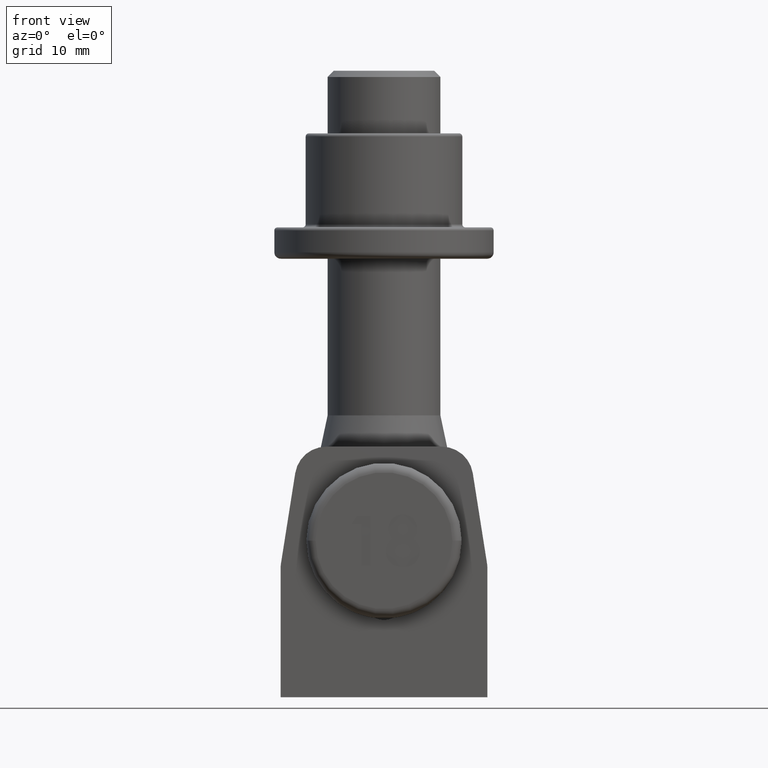
[diagram: clean part render]
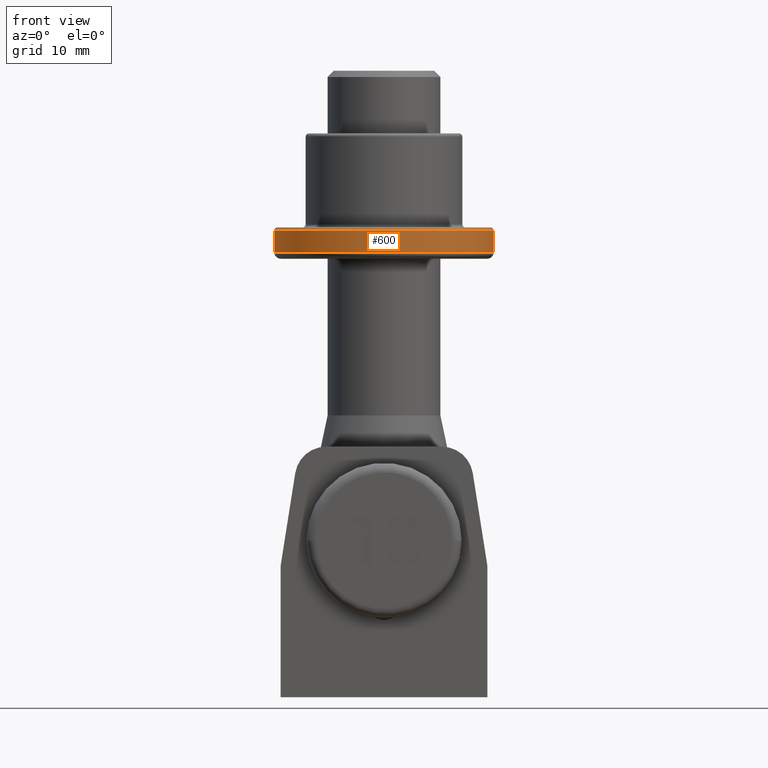
[diagram: same view with one face highlighted and labeled with its STEP entity id]
A machine part, front view. The second image highlights one B-rep face of the part: STEP entity #600.
In plain terms, the highlighted cylindrical surface (partial cylindrical patch) has radius 17.5 mm, axis along (-0, -0, -1).
Its self-contained STEP definition (entity closure, byte-faithful):
#232 = CARTESIAN_POINT ( 'NONE',  ( 0.0000000000000000000, 0.0000000000000000000, 1.000000000000000900 ) ) ;
#600 = ADVANCED_FACE ( 'NONE', ( #7472 ), #6503, .T. ) ;
#680 = EDGE_LOOP ( 'NONE', ( #13530, #1802, #7860, #10313 ) ) ;
#1126 = LINE ( 'NONE', #5951, #9847 ) ;
#1248 = DIRECTION ( 'NONE',  ( -0.0000000000000000000, -0.0000000000000000000, -1.000000000000000000 ) ) ;
#1388 = DIRECTION ( 'NONE',  ( -0.0000000000000000000, -0.0000000000000000000, -1.000000000000000000 ) ) ;
#1557 = CARTESIAN_POINT ( 'NONE',  ( 0.0000000000000000000, 0.0000000000000000000, 4.500000000000003600 ) ) ;
#1802 = ORIENTED_EDGE ( 'NONE', *, *, #5618, .T. ) ;
#1829 = DIRECTION ( 'NONE',  ( 1.000000000000000000, 0.0000000000000000000, 0.0000000000000000000 ) ) ;
#2329 = CARTESIAN_POINT ( 'NONE',  ( -17.50000000000000400, 0.0000000000000000000, 4.500000000000003600 ) ) ;
#2380 = EDGE_CURVE ( 'NONE', #6177, #10630, #12768, .T. ) ;
#2868 = DIRECTION ( 'NONE',  ( -0.0000000000000000000, -0.0000000000000000000, -1.000000000000000000 ) ) ;
#4364 = CIRCLE ( 'NONE', #11551, 17.50000000000000400 ) ;
#4393 = EDGE_CURVE ( 'NONE', #7471, #15809, #1126, .T. ) ;
#4629 = AXIS2_PLACEMENT_3D ( 'NONE', #1557, #2868, #14031 ) ;
#5088 = AXIS2_PLACEMENT_3D ( 'NONE', #6085, #7720, #11454 ) ;
#5618 = EDGE_CURVE ( 'NONE', #6177, #7471, #13286, .T. ) ;
#5951 = CARTESIAN_POINT ( 'NONE',  ( -17.50000000000000400, 0.0000000000000000000, 5.000000000000004400 ) ) ;
#6085 = CARTESIAN_POINT ( 'NONE',  ( 0.0000000000000000000, 0.0000000000000000000, 5.000000000000004400 ) ) ;
#6177 = VERTEX_POINT ( 'NONE', #9436 ) ;
#6503 = CYLINDRICAL_SURFACE ( 'NONE', #5088, 17.50000000000000400 ) ;
#7471 = VERTEX_POINT ( 'NONE', #2329 ) ;
#7472 = FACE_OUTER_BOUND ( 'NONE', #680, .T. ) ;
#7561 = CARTESIAN_POINT ( 'NONE',  ( 17.50000000000000400, 2.143131898507868600E-015, 1.000000000000000900 ) ) ;
#7720 = DIRECTION ( 'NONE',  ( -0.0000000000000000000, -0.0000000000000000000, -1.000000000000000000 ) ) ;
#7860 = ORIENTED_EDGE ( 'NONE', *, *, #4393, .T. ) ;
#8846 = CARTESIAN_POINT ( 'NONE',  ( -17.50000000000000400, 0.0000000000000000000, 1.000000000000000900 ) ) ;
#9436 = CARTESIAN_POINT ( 'NONE',  ( 17.50000000000000400, 2.143131898507868600E-015, 4.500000000000003600 ) ) ;
#9773 = EDGE_CURVE ( 'NONE', #15809, #10630, #4364, .T. ) ;
#9847 = VECTOR ( 'NONE', #1248, 1000.000000000000000 ) ;
#10313 = ORIENTED_EDGE ( 'NONE', *, *, #9773, .T. ) ;
#10630 = VERTEX_POINT ( 'NONE', #7561 ) ;
#11454 = DIRECTION ( 'NONE',  ( -1.000000000000000000, 0.0000000000000000000, 0.0000000000000000000 ) ) ;
#11551 = AXIS2_PLACEMENT_3D ( 'NONE', #232, #15010, #1829 ) ;
#12768 = LINE ( 'NONE', #15998, #15687 ) ;
#13286 = CIRCLE ( 'NONE', #4629, 17.50000000000000400 ) ;
#13530 = ORIENTED_EDGE ( 'NONE', *, *, #2380, .F. ) ;
#14031 = DIRECTION ( 'NONE',  ( 1.000000000000000000, 0.0000000000000000000, 0.0000000000000000000 ) ) ;
#15010 = DIRECTION ( 'NONE',  ( 0.0000000000000000000, 0.0000000000000000000, 1.000000000000000000 ) ) ;
#15687 = VECTOR ( 'NONE', #1388, 1000.000000000000000 ) ;
#15809 = VERTEX_POINT ( 'NONE', #8846 ) ;
#15998 = CARTESIAN_POINT ( 'NONE',  ( 17.50000000000000400, 2.143131898507868600E-015, 5.000000000000004400 ) ) ;